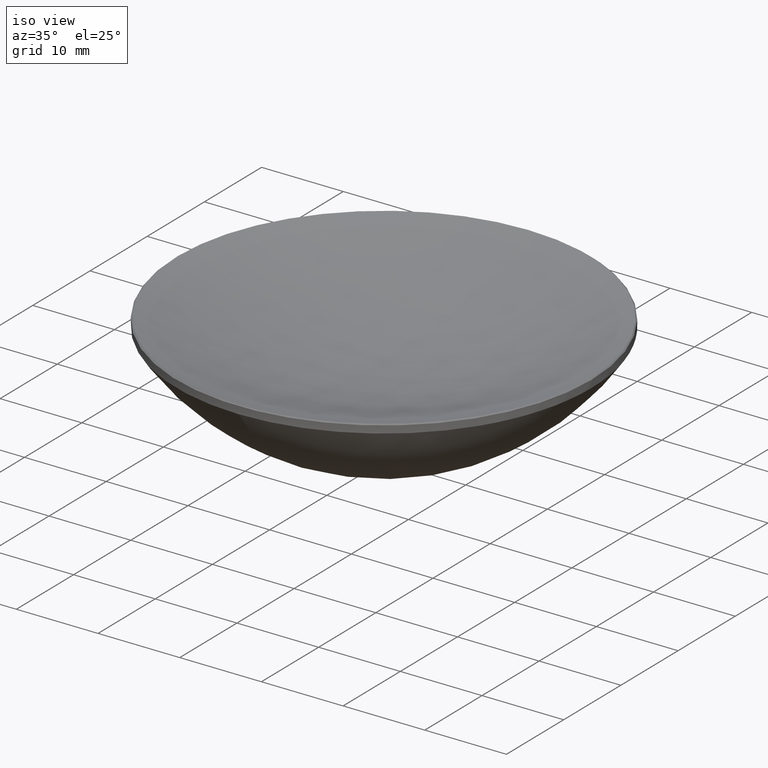
[diagram: clean part render]
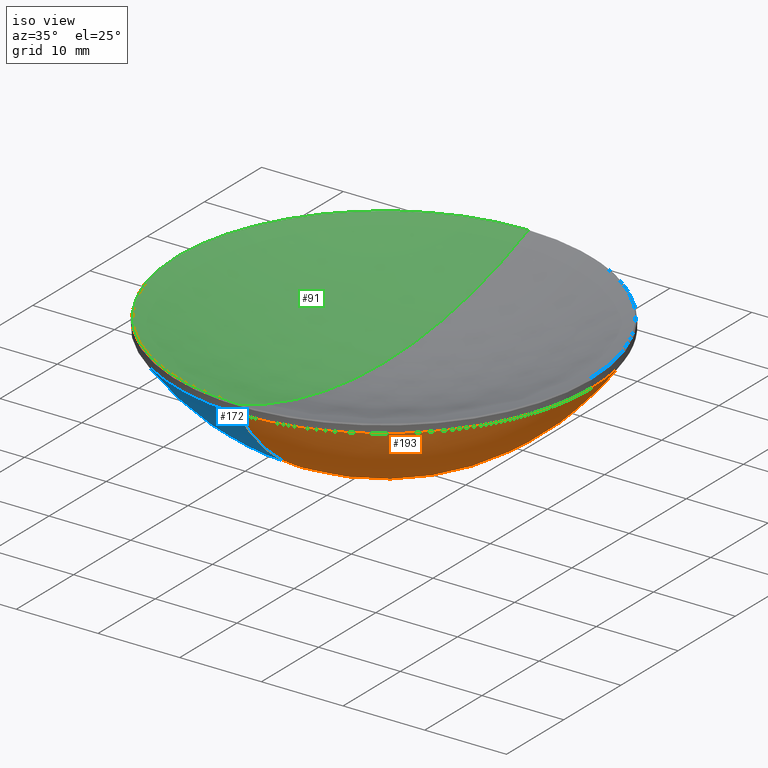
[diagram: same view with three faces highlighted in distinct colors, each labeled with its STEP entity id]
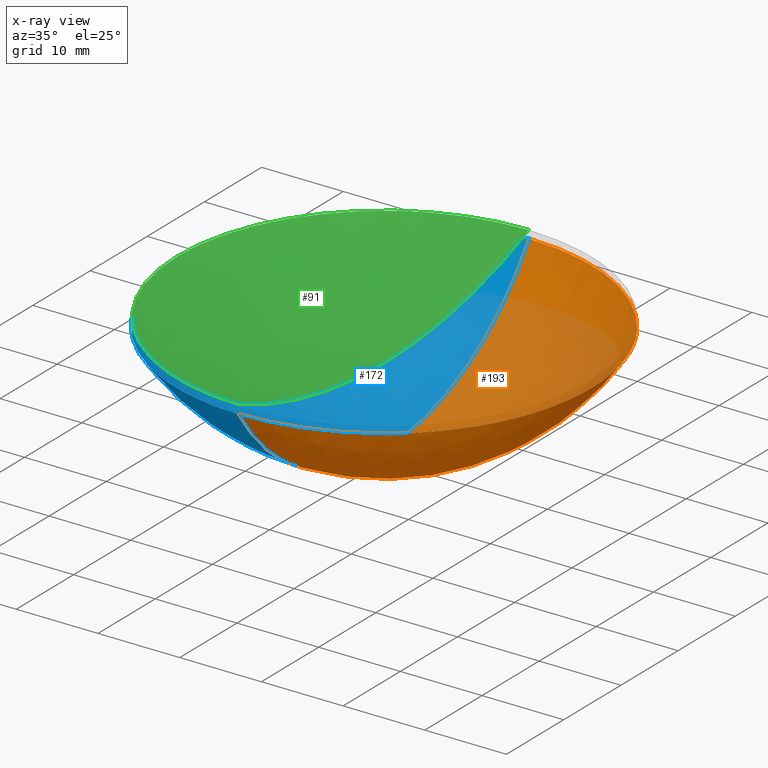
[diagram: x-ray of the same camera — body ghosted, the three highlighted faces saturated]
A machine part, iso view with three faces highlighted in distinct colors.
The next image is the same camera in x-ray (body ghosted, the three faces saturated) — at least one of them is partly hidden behind the body in this view.
Their STEP definitions:

[orange] entity #193 — the highlighted spherical surface has radius 30.34 mm.
#6 = CARTESIAN_POINT ( 'NONE',  ( 0.000000000000000000, 1.857789194306534769E-15, 2.253842231382106931 ) ) ;
#9 = DIRECTION ( 'NONE',  ( 1.000000000000000000, 0.000000000000000000, 0.000000000000000000 ) ) ;
#13 = EDGE_CURVE ( 'NONE', #182, #95, #75, .T. ) ;
#25 = CARTESIAN_POINT ( 'NONE',  ( 0.000000000000000000, 0.000000000000000000, 32.59384223138210501 ) ) ;
#45 = DIRECTION ( 'NONE',  ( 0.000000000000000000, 0.000000000000000000, -1.000000000000000000 ) ) ;
#50 = CARTESIAN_POINT ( 'NONE',  ( -3.110602869834276076E-15, -25.39999999999999503, 16.00000000000000000 ) ) ;
#54 = DIRECTION ( 'NONE',  ( 0.000000000000000000, 1.000000000000000000, 0.000000000000000000 ) ) ;
#58 = CIRCLE ( 'NONE', #215, 25.39999999999999503 ) ;
#65 = DIRECTION ( 'NONE',  ( -1.000000000000000000, 1.224646799147353207E-16, 0.000000000000000000 ) ) ;
#75 = CIRCLE ( 'NONE', #279, 30.33999999999999986 ) ;
#83 = CARTESIAN_POINT ( 'NONE',  ( 0.000000000000000000, 0.000000000000000000, 32.59384223138210501 ) ) ;
#84 = EDGE_LOOP ( 'NONE', ( #274, #164, #143, #276 ) ) ;
#89 = CARTESIAN_POINT ( 'NONE',  ( 0.000000000000000000, 25.39999999999999503, 16.00000000000000000 ) ) ;
#92 = DIRECTION ( 'NONE',  ( -0.000000000000000000, -0.000000000000000000, 1.000000000000000000 ) ) ;
#93 = FACE_OUTER_BOUND ( 'NONE', #84, .T. ) ;
#95 = VERTEX_POINT ( 'NONE', #89 ) ;
#105 = DIRECTION ( 'NONE',  ( -1.000000000000000000, 0.000000000000000000, 0.000000000000000000 ) ) ;
#120 = CARTESIAN_POINT ( 'NONE',  ( 0.000000000000000000, 0.000000000000000000, 16.00000000000000000 ) ) ;
#132 = EDGE_CURVE ( 'NONE', #169, #210, #238, .T. ) ;
#143 = ORIENTED_EDGE ( 'NONE', *, *, #157, .F. ) ;
#145 = CARTESIAN_POINT ( 'NONE',  ( 0.000000000000000000, 0.000000000000000000, 16.00000000000000000 ) ) ;
#150 = AXIS2_PLACEMENT_3D ( 'NONE', #25, #65, #266 ) ;
#153 = DIRECTION ( 'NONE',  ( 1.000000000000000000, 0.000000000000000000, 0.000000000000000000 ) ) ;
#157 = EDGE_CURVE ( 'NONE', #210, #95, #58, .T. ) ;
#164 = ORIENTED_EDGE ( 'NONE', *, *, #13, .T. ) ;
#169 = VERTEX_POINT ( 'NONE', #50 ) ;
#174 = SPHERICAL_SURFACE ( 'NONE', #175, 30.33999999999999986 ) ;
#175 = AXIS2_PLACEMENT_3D ( 'NONE', #269, #105, #54 ) ;
#182 = VERTEX_POINT ( 'NONE', #6 ) ;
#185 = CIRCLE ( 'NONE', #150, 30.33999999999999986 ) ;
#193 = ADVANCED_FACE ( 'NONE', ( #93 ), #174, .T. ) ;
#201 = DIRECTION ( 'NONE',  ( -0.000000000000000000, -0.000000000000000000, 1.000000000000000000 ) ) ;
#210 = VERTEX_POINT ( 'NONE', #230 ) ;
#213 = DIRECTION ( 'NONE',  ( 1.000000000000000000, -0.000000000000000000, 0.000000000000000000 ) ) ;
#215 = AXIS2_PLACEMENT_3D ( 'NONE', #120, #92, #153 ) ;
#230 = CARTESIAN_POINT ( 'NONE',  ( 25.39999999999999503, 3.110602869834276471E-15, 16.00000000000000000 ) ) ;
#238 = CIRCLE ( 'NONE', #271, 25.39999999999999503 ) ;
#260 = EDGE_CURVE ( 'NONE', #182, #169, #185, .T. ) ;
#266 = DIRECTION ( 'NONE',  ( -1.224646799147353207E-16, -1.000000000000000000, 0.000000000000000000 ) ) ;
#269 = CARTESIAN_POINT ( 'NONE',  ( 0.000000000000000000, 0.000000000000000000, 32.59384223138210501 ) ) ;
#271 = AXIS2_PLACEMENT_3D ( 'NONE', #145, #201, #9 ) ;
#274 = ORIENTED_EDGE ( 'NONE', *, *, #260, .F. ) ;
#276 = ORIENTED_EDGE ( 'NONE', *, *, #132, .F. ) ;
#279 = AXIS2_PLACEMENT_3D ( 'NONE', #83, #213, #45 ) ;

[blue] entity #172 — the highlighted spherical surface has radius 30.34 mm.
#6 = CARTESIAN_POINT ( 'NONE',  ( 0.000000000000000000, 1.857789194306534769E-15, 2.253842231382106931 ) ) ;
#10 = CARTESIAN_POINT ( 'NONE',  ( 0.000000000000000000, 0.000000000000000000, 32.59384223138210501 ) ) ;
#13 = EDGE_CURVE ( 'NONE', #182, #95, #75, .T. ) ;
#25 = CARTESIAN_POINT ( 'NONE',  ( 0.000000000000000000, 0.000000000000000000, 32.59384223138210501 ) ) ;
#26 = EDGE_CURVE ( 'NONE', #261, #169, #94, .T. ) ;
#29 = DIRECTION ( 'NONE',  ( 1.000000000000000000, 0.000000000000000000, 0.000000000000000000 ) ) ;
#41 = DIRECTION ( 'NONE',  ( 1.000000000000000000, 0.000000000000000000, 0.000000000000000000 ) ) ;
#45 = DIRECTION ( 'NONE',  ( 0.000000000000000000, 0.000000000000000000, -1.000000000000000000 ) ) ;
#50 = CARTESIAN_POINT ( 'NONE',  ( -3.110602869834276076E-15, -25.39999999999999503, 16.00000000000000000 ) ) ;
#62 = AXIS2_PLACEMENT_3D ( 'NONE', #237, #116, #41 ) ;
#65 = DIRECTION ( 'NONE',  ( -1.000000000000000000, 1.224646799147353207E-16, 0.000000000000000000 ) ) ;
#75 = CIRCLE ( 'NONE', #279, 30.33999999999999986 ) ;
#80 = ORIENTED_EDGE ( 'NONE', *, *, #229, .F. ) ;
#83 = CARTESIAN_POINT ( 'NONE',  ( 0.000000000000000000, 0.000000000000000000, 32.59384223138210501 ) ) ;
#89 = CARTESIAN_POINT ( 'NONE',  ( 0.000000000000000000, 25.39999999999999503, 16.00000000000000000 ) ) ;
#94 = CIRCLE ( 'NONE', #62, 25.39999999999999503 ) ;
#95 = VERTEX_POINT ( 'NONE', #89 ) ;
#99 = ORIENTED_EDGE ( 'NONE', *, *, #260, .T. ) ;
#100 = ORIENTED_EDGE ( 'NONE', *, *, #26, .F. ) ;
#106 = DIRECTION ( 'NONE',  ( -1.000000000000000000, 0.000000000000000000, 0.000000000000000000 ) ) ;
#112 = EDGE_LOOP ( 'NONE', ( #258, #99, #100, #80 ) ) ;
#116 = DIRECTION ( 'NONE',  ( -0.000000000000000000, -0.000000000000000000, 1.000000000000000000 ) ) ;
#123 = SPHERICAL_SURFACE ( 'NONE', #181, 30.33999999999999986 ) ;
#126 = CARTESIAN_POINT ( 'NONE',  ( 0.000000000000000000, 0.000000000000000000, 16.00000000000000000 ) ) ;
#127 = DIRECTION ( 'NONE',  ( 0.000000000000000000, 1.000000000000000000, 0.000000000000000000 ) ) ;
#150 = AXIS2_PLACEMENT_3D ( 'NONE', #25, #65, #266 ) ;
#154 = FACE_OUTER_BOUND ( 'NONE', #112, .T. ) ;
#169 = VERTEX_POINT ( 'NONE', #50 ) ;
#172 = ADVANCED_FACE ( 'NONE', ( #154 ), #123, .T. ) ;
#181 = AXIS2_PLACEMENT_3D ( 'NONE', #10, #106, #127 ) ;
#182 = VERTEX_POINT ( 'NONE', #6 ) ;
#185 = CIRCLE ( 'NONE', #150, 30.33999999999999986 ) ;
#213 = DIRECTION ( 'NONE',  ( 1.000000000000000000, -0.000000000000000000, 0.000000000000000000 ) ) ;
#216 = CIRCLE ( 'NONE', #231, 25.39999999999999503 ) ;
#227 = DIRECTION ( 'NONE',  ( -0.000000000000000000, -0.000000000000000000, 1.000000000000000000 ) ) ;
#229 = EDGE_CURVE ( 'NONE', #95, #261, #216, .T. ) ;
#231 = AXIS2_PLACEMENT_3D ( 'NONE', #126, #227, #29 ) ;
#237 = CARTESIAN_POINT ( 'NONE',  ( 0.000000000000000000, 0.000000000000000000, 16.00000000000000000 ) ) ;
#243 = CARTESIAN_POINT ( 'NONE',  ( -25.39999999999999503, 0.000000000000000000, 16.00000000000000000 ) ) ;
#258 = ORIENTED_EDGE ( 'NONE', *, *, #13, .F. ) ;
#260 = EDGE_CURVE ( 'NONE', #182, #169, #185, .T. ) ;
#261 = VERTEX_POINT ( 'NONE', #243 ) ;
#266 = DIRECTION ( 'NONE',  ( -1.224646799147353207E-16, -1.000000000000000000, 0.000000000000000000 ) ) ;
#279 = AXIS2_PLACEMENT_3D ( 'NONE', #83, #213, #45 ) ;

[green] entity #91 — the highlighted spherical surface has radius 65.8 mm.
#14 = VERTEX_POINT ( 'NONE', #263 ) ;
#15 = EDGE_CURVE ( 'NONE', #18, #131, #184, .T. ) ;
#18 = VERTEX_POINT ( 'NONE', #219 ) ;
#22 = AXIS2_PLACEMENT_3D ( 'NONE', #24, #178, #247 ) ;
#24 = CARTESIAN_POINT ( 'NONE',  ( 0.000000000000000000, 0.000000000000000000, 77.79991762762121255 ) ) ;
#33 = AXIS2_PLACEMENT_3D ( 'NONE', #64, #136, #235 ) ;
#37 = ORIENTED_EDGE ( 'NONE', *, *, #242, .T. ) ;
#64 = CARTESIAN_POINT ( 'NONE',  ( 0.000000000000000000, 0.000000000000000000, 17.04113457845134860 ) ) ;
#67 = EDGE_CURVE ( 'NONE', #115, #18, #155, .T. ) ;
#74 = CARTESIAN_POINT ( 'NONE',  ( 0.000000000000000000, 0.000000000000000000, 77.79991762762121255 ) ) ;
#90 = CARTESIAN_POINT ( 'NONE',  ( 0.000000000000000000, 0.000000000000000000, 77.79991762762121255 ) ) ;
#91 = ADVANCED_FACE ( 'NONE', ( #224 ), #109, .F. ) ;
#109 = SPHERICAL_SURFACE ( 'NONE', #121, 65.79999999999999716 ) ;
#110 = DIRECTION ( 'NONE',  ( 0.000000000000000000, 1.000000000000000000, 0.000000000000000000 ) ) ;
#111 = ORIENTED_EDGE ( 'NONE', *, *, #15, .T. ) ;
#115 = VERTEX_POINT ( 'NONE', #171 ) ;
#121 = AXIS2_PLACEMENT_3D ( 'NONE', #74, #205, #110 ) ;
#131 = VERTEX_POINT ( 'NONE', #179 ) ;
#136 = DIRECTION ( 'NONE',  ( -0.000000000000000000, -0.000000000000000000, 1.000000000000000000 ) ) ;
#144 = DIRECTION ( 'NONE',  ( 0.000000000000000000, 0.000000000000000000, -1.000000000000000000 ) ) ;
#155 = CIRCLE ( 'NONE', #280, 25.25886542154865921 ) ;
#161 = EDGE_LOOP ( 'NONE', ( #232, #37, #265, #111 ) ) ;
#162 = EDGE_CURVE ( 'NONE', #14, #131, #189, .T. ) ;
#171 = CARTESIAN_POINT ( 'NONE',  ( 0.000000000000000000, 25.25886542154867698, 17.04113457845135216 ) ) ;
#176 = AXIS2_PLACEMENT_3D ( 'NONE', #90, #270, #144 ) ;
#178 = DIRECTION ( 'NONE',  ( -1.000000000000000000, 1.224646799147353207E-16, 0.000000000000000000 ) ) ;
#179 = CARTESIAN_POINT ( 'NONE',  ( -3.093318868859335282E-15, -25.25886542154867698, 17.04113457845135216 ) ) ;
#184 = CIRCLE ( 'NONE', #33, 25.25886542154865921 ) ;
#189 = CIRCLE ( 'NONE', #22, 65.79999999999999716 ) ;
#194 = DIRECTION ( 'NONE',  ( 1.000000000000000000, 0.000000000000000000, 0.000000000000000000 ) ) ;
#205 = DIRECTION ( 'NONE',  ( -1.000000000000000000, 0.000000000000000000, 0.000000000000000000 ) ) ;
#217 = CARTESIAN_POINT ( 'NONE',  ( 0.000000000000000000, 0.000000000000000000, 17.04113457845134860 ) ) ;
#219 = CARTESIAN_POINT ( 'NONE',  ( -25.25886542154865921, 0.000000000000000000, 17.04113457845134860 ) ) ;
#224 = FACE_OUTER_BOUND ( 'NONE', #161, .T. ) ;
#232 = ORIENTED_EDGE ( 'NONE', *, *, #162, .F. ) ;
#235 = DIRECTION ( 'NONE',  ( 1.000000000000000000, 0.000000000000000000, 0.000000000000000000 ) ) ;
#242 = EDGE_CURVE ( 'NONE', #14, #115, #256, .T. ) ;
#247 = DIRECTION ( 'NONE',  ( -1.224646799147353207E-16, -1.000000000000000000, 0.000000000000000000 ) ) ;
#256 = CIRCLE ( 'NONE', #176, 65.79999999999999716 ) ;
#263 = CARTESIAN_POINT ( 'NONE',  ( 0.000000000000000000, 4.029087969194792054E-15, 11.99991762762121716 ) ) ;
#265 = ORIENTED_EDGE ( 'NONE', *, *, #67, .T. ) ;
#270 = DIRECTION ( 'NONE',  ( 1.000000000000000000, 0.000000000000000000, 0.000000000000000000 ) ) ;
#280 = AXIS2_PLACEMENT_3D ( 'NONE', #217, #282, #194 ) ;
#282 = DIRECTION ( 'NONE',  ( -0.000000000000000000, -0.000000000000000000, 1.000000000000000000 ) ) ;